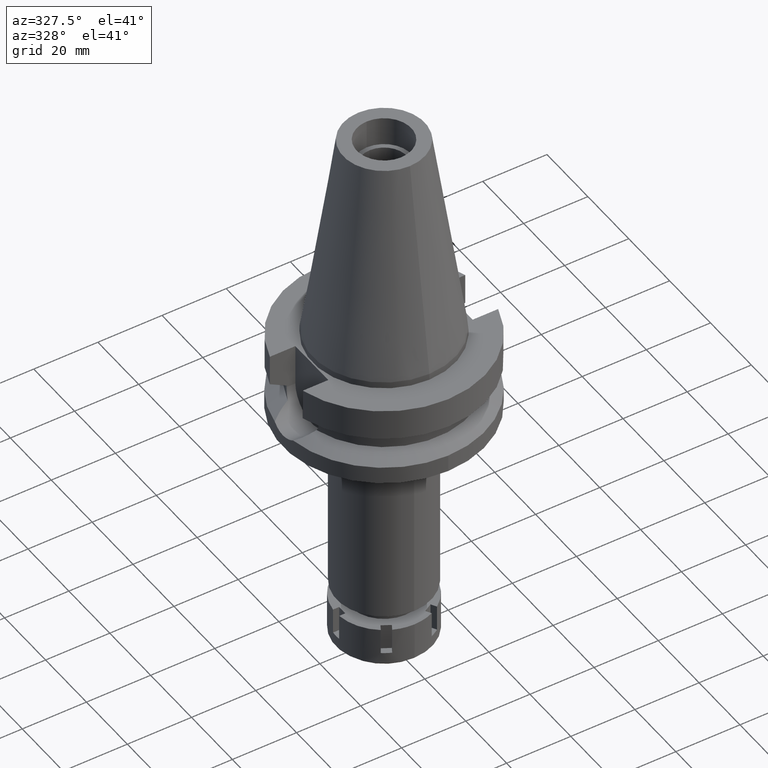
[diagram: clean part render]
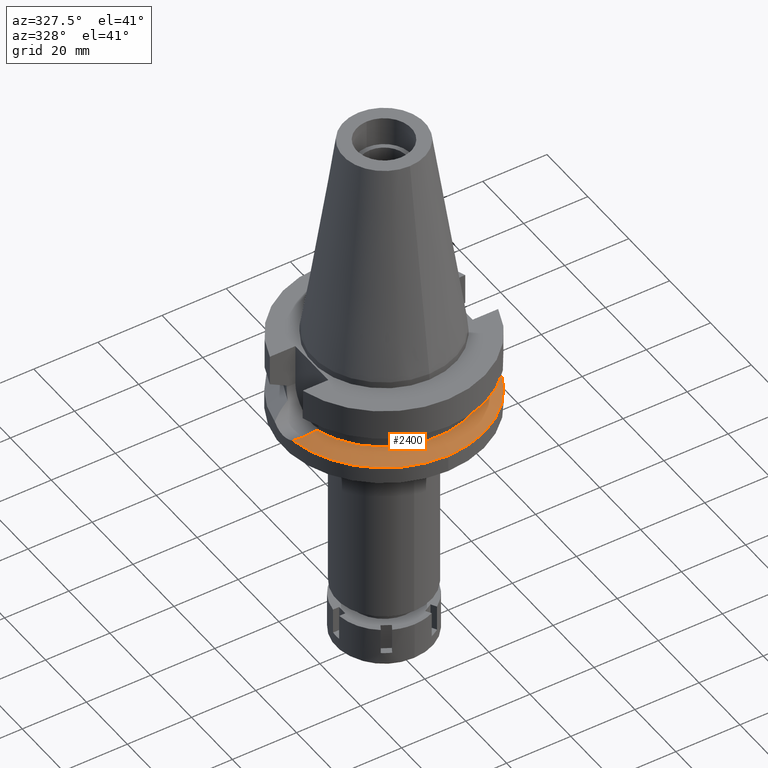
[diagram: same view with one face highlighted and labeled with its STEP entity id]
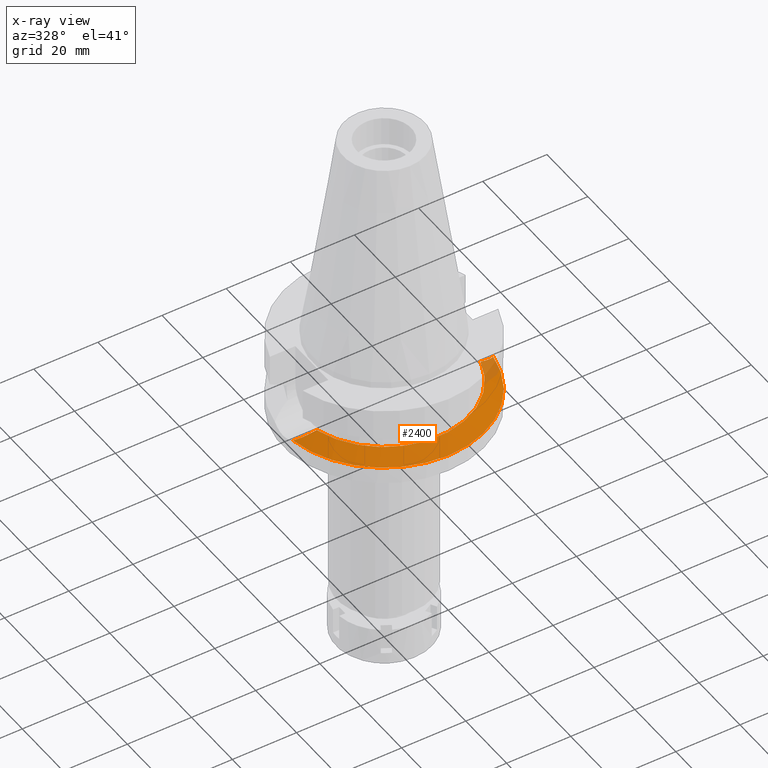
[diagram: x-ray of the same camera — body ghosted, the highlighted face saturated]
A machine part, auxiliary view. The second image highlights one B-rep face of the part: STEP entity #2400.
The next image is the same camera in x-ray: the body ghosted, the highlighted face saturated — about 6% of this face is hidden behind the body in this view.
In plain terms, the highlighted conical surface has half-angle 60 deg.
Its self-contained STEP definition (entity closure, byte-faithful):
#10 = EDGE_CURVE ( 'NONE', #954, #3477, #525, .T. ) ;
#11 = CARTESIAN_POINT ( 'NONE',  ( -29.39514072034122805, -5.608339525091836641, -20.72538901268407940 ) ) ;
#28 = CARTESIAN_POINT ( 'NONE',  ( -30.49825168067328107, -4.972631182488449042, -21.28794679805041312 ) ) ;
#95 = CARTESIAN_POINT ( 'NONE',  ( -28.90148769238108883, -5.856338405485233878, -20.47335502823671405 ) ) ;
#168 = CIRCLE ( 'NONE', #1630, 31.50000000000000000 ) ;
#226 = CARTESIAN_POINT ( 'NONE',  ( 29.77068915634477264, -5.403764312559173000, -20.91666143481801043 ) ) ;
#272 = DIRECTION ( 'NONE',  ( 0.9898094849552905306, -0.1423979757318985240, 0.0000000000000000000 ) ) ;
#328 = CARTESIAN_POINT ( 'NONE',  ( -29.23388013850898304, -5.692297187295192629, -20.64307551781134009 ) ) ;
#338 = DIRECTION ( 'NONE',  ( 0.0000000000000000000, -1.000000000000000000, 0.0000000000000000000 ) ) ;
#386 = ORIENTED_EDGE ( 'NONE', *, *, #1370, .F. ) ;
#412 = AXIS2_PLACEMENT_3D ( 'NONE', #906, #1708, #272 ) ;
#430 = CARTESIAN_POINT ( 'NONE',  ( 27.73412114616314383, -6.390234714726573451, -19.87728445065420146 ) ) ;
#459 = CARTESIAN_POINT ( 'NONE',  ( 30.44040246382464332, -5.010865581101833222, -21.25820570662288844 ) ) ;
#492 = CARTESIAN_POINT ( 'NONE',  ( 29.16109468099450552, -5.727074313445860376, -20.60567330108174744 ) ) ;
#525 = CIRCLE ( 'NONE', #412, 31.50000000000001421 ) ;
#555 = ORIENTED_EDGE ( 'NONE', *, *, #2460, .F. ) ;
#567 = EDGE_CURVE ( 'NONE', #715, #1936, #1592, .T. ) ;
#599 = CARTESIAN_POINT ( 'NONE',  ( -26.80915094334016047, -6.746727095092058590, -19.40400350584338796 ) ) ;
#715 = VERTEX_POINT ( 'NONE', #1603 ) ;
#778 = CARTESIAN_POINT ( 'NONE',  ( 30.83532868708817176, -4.746267956595600523, -21.45953398059393535 ) ) ;
#906 = CARTESIAN_POINT ( 'NONE',  ( 0.0000000000000000000, 0.0000000000000000000, -21.63449434733000132 ) ) ;
#913 = CARTESIAN_POINT ( 'NONE',  ( 0.0000000000000000000, 0.0000000000000000000, -18.74774300138999905 ) ) ;
#954 = VERTEX_POINT ( 'NONE', #3393 ) ;
#983 = CARTESIAN_POINT ( 'NONE',  ( 0.0000000000000000000, -31.50000000000000000, -21.63449434733000132 ) ) ;
#1017 = CARTESIAN_POINT ( 'NONE',  ( 28.55999810258598259, -6.015738765756173834, -20.29889938495651691 ) ) ;
#1045 = AXIS2_PLACEMENT_3D ( 'NONE', #2607, #1236, #3494 ) ;
#1130 = CARTESIAN_POINT ( 'NONE',  ( -25.53175183775000079, -7.097862220092999941, -18.74774300138999905 ) ) ;
#1187 = CARTESIAN_POINT ( 'NONE',  ( 25.53175183775000079, -7.097862220092999941, -18.74774300138999905 ) ) ;
#1236 = DIRECTION ( 'NONE',  ( 0.0000000000000000000, 0.0000000000000000000, -1.000000000000000000 ) ) ;
#1312 = CARTESIAN_POINT ( 'NONE',  ( 28.61955471277304852, -5.988398523569117060, -20.32930126043389407 ) ) ;
#1350 = CARTESIAN_POINT ( 'NONE',  ( 26.74379364976973505, -6.764692695147423329, -19.37042636441158905 ) ) ;
#1356 = ORIENTED_EDGE ( 'NONE', *, *, #567, .F. ) ;
#1370 = EDGE_CURVE ( 'NONE', #3311, #715, #2133, .T. ) ;
#1417 = CARTESIAN_POINT ( 'NONE',  ( -31.17899877608999759, -4.485536235554000051, -21.63449434733000132 ) ) ;
#1508 = DIRECTION ( 'NONE',  ( 0.0000000000000000000, -1.000000000000000000, 0.0000000000000000000 ) ) ;
#1518 = DIRECTION ( 'NONE',  ( 0.0000000000000000000, 0.0000000000000000000, -1.000000000000000000 ) ) ;
#1526 = CONICAL_SURFACE ( 'NONE', #1045, 29.00000000000000000, 1.047197551196400456 ) ;
#1569 = CARTESIAN_POINT ( 'NONE',  ( 28.50867123400812275, -6.039118351481571167, -20.27269740067625037 ) ) ;
#1588 = EDGE_CURVE ( 'NONE', #954, #1936, #2527, .T. ) ;
#1592 = CIRCLE ( 'NONE', #2005, 26.50000000000000000 ) ;
#1599 = ORIENTED_EDGE ( 'NONE', *, *, #1588, .T. ) ;
#1603 = CARTESIAN_POINT ( 'NONE',  ( -25.53175183775000079, -7.097862220092999941, -18.74774300138999905 ) ) ;
#1630 = AXIS2_PLACEMENT_3D ( 'NONE', #2562, #1518, #338 ) ;
#1704 = CARTESIAN_POINT ( 'NONE',  ( -30.85492607756544814, -4.731400030899744813, -21.46951089372711152 ) ) ;
#1707 = CARTESIAN_POINT ( 'NONE',  ( -31.17899877608999759, -4.485536235554000051, -21.63449434733000132 ) ) ;
#1708 = DIRECTION ( 'NONE',  ( 0.0000000000000000000, 0.0000000000000000000, -1.000000000000000000 ) ) ;
#1936 = VERTEX_POINT ( 'NONE', #1187 ) ;
#1969 = CARTESIAN_POINT ( 'NONE',  ( -27.91301439893391390, -6.327635483364366209, -19.96856581027386923 ) ) ;
#2005 = AXIS2_PLACEMENT_3D ( 'NONE', #913, #2028, #1508 ) ;
#2028 = DIRECTION ( 'NONE',  ( 0.0000000000000000000, 0.0000000000000000000, 1.000000000000000000 ) ) ;
#2034 = CARTESIAN_POINT ( 'NONE',  ( -28.95645267599300610, -5.829731197019764721, -20.50142290329776529 ) ) ;
#2077 = FACE_OUTER_BOUND ( 'NONE', #3288, .T. ) ;
#2122 = CARTESIAN_POINT ( 'NONE',  ( 28.50308329106931637, -6.041653491662443365, -20.26984473202523063 ) ) ;
#2133 = B_SPLINE_CURVE_WITH_KNOTS ( 'NONE', 3,
 ( #1417, #1704, #28, #2536, #2555, #11, #328, #2831, #2034, #95, #1969, #599, #1130 ),
 .UNSPECIFIED., .F., .F.,
 ( 4, 2, 2, 1, 2, 2, 4 ),
 ( 0.0000000000000000000, 0.2500000000000046074, 0.3750000000000061062, 0.4375000000000061062, 0.4687500000000067168, 0.5000000000000072164, 1.000000000000000000 ),
 .UNSPECIFIED. ) ;
#2174 = CARTESIAN_POINT ( 'NONE',  ( 28.51724186776671033, -6.035224979497839648, -20.27707271313121851 ) ) ;
#2400 = ADVANCED_FACE ( 'NONE', ( #2077 ), #1526, .T. ) ;
#2450 = CARTESIAN_POINT ( 'NONE',  ( 25.53175183775000079, -7.097862220092999941, -18.74774300138999905 ) ) ;
#2460 = EDGE_CURVE ( 'NONE', #3477, #3311, #168, .T. ) ;
#2474 = CARTESIAN_POINT ( 'NONE',  ( 28.73761666950356997, -5.933516423053970534, -20.38956426329111693 ) ) ;
#2527 = B_SPLINE_CURVE_WITH_KNOTS ( 'NONE', 3,
 ( #3251, #778, #459, #226, #2971, #492, #3607, #2474, #1312, #1017, #2713, #2174, #1569, #2122, #430, #1350, #2450 ),
 .UNSPECIFIED., .F., .F.,
 ( 4, 2, 2, 1, 1, 1, 1, 1, 2, 2, 4 ),
 ( 0.0000000000000000000, 0.2500000000000142664, 0.3750000000000216493, 0.4375000000000252021, 0.4687500000000269784, 0.4843750000000284217, 0.4921875000000291434, 0.4960937500000297540, 0.4980468750000303646, 0.5000000000000309752, 1.000000000000000000 ),
 .UNSPECIFIED. ) ;
#2536 = CARTESIAN_POINT ( 'NONE',  ( -29.91433753778359517, -5.323620700789608584, -20.99028933554657783 ) ) ;
#2555 = CARTESIAN_POINT ( 'NONE',  ( -29.71154906556178688, -5.438803950364639483, -20.88685720694509840 ) ) ;
#2562 = CARTESIAN_POINT ( 'NONE',  ( 0.0000000000000000000, 0.0000000000000000000, -21.63449434733000132 ) ) ;
#2607 = CARTESIAN_POINT ( 'NONE',  ( 0.0000000000000000000, 0.0000000000000000000, -20.19111867435999841 ) ) ;
#2713 = CARTESIAN_POINT ( 'NONE',  ( 28.53008843831585395, -6.029383040744217936, -20.28363085370563823 ) ) ;
#2831 = CARTESIAN_POINT ( 'NONE',  ( -29.06803494284379497, -5.774939707706772118, -20.55839847488711314 ) ) ;
#2971 = CARTESIAN_POINT ( 'NONE',  ( 29.53457104940616773, -5.534047475175969844, -20.79622136740833938 ) ) ;
#3251 = CARTESIAN_POINT ( 'NONE',  ( 31.17899877608999759, -4.485536235554000051, -21.63449434733000132 ) ) ;
#3288 = EDGE_LOOP ( 'NONE', ( #555, #3558, #1599, #1356, #386 ) ) ;
#3311 = VERTEX_POINT ( 'NONE', #1707 ) ;
#3393 = CARTESIAN_POINT ( 'NONE',  ( 31.17899877608999759, -4.485536235554000051, -21.63449434733000132 ) ) ;
#3477 = VERTEX_POINT ( 'NONE', #983 ) ;
#3494 = DIRECTION ( 'NONE',  ( 0.0000000000000000000, -1.000000000000000000, 0.0000000000000000000 ) ) ;
#3558 = ORIENTED_EDGE ( 'NONE', *, *, #10, .F. ) ;
#3607 = CARTESIAN_POINT ( 'NONE',  ( 28.96953259804829273, -5.822986727424904529, -20.50792727661544035 ) ) ;